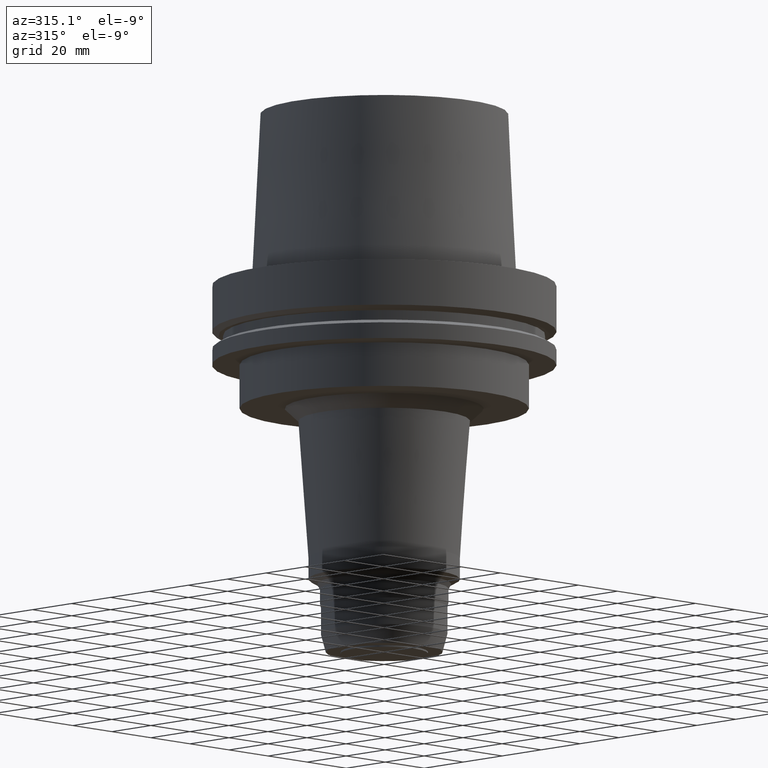
[diagram: clean part render]
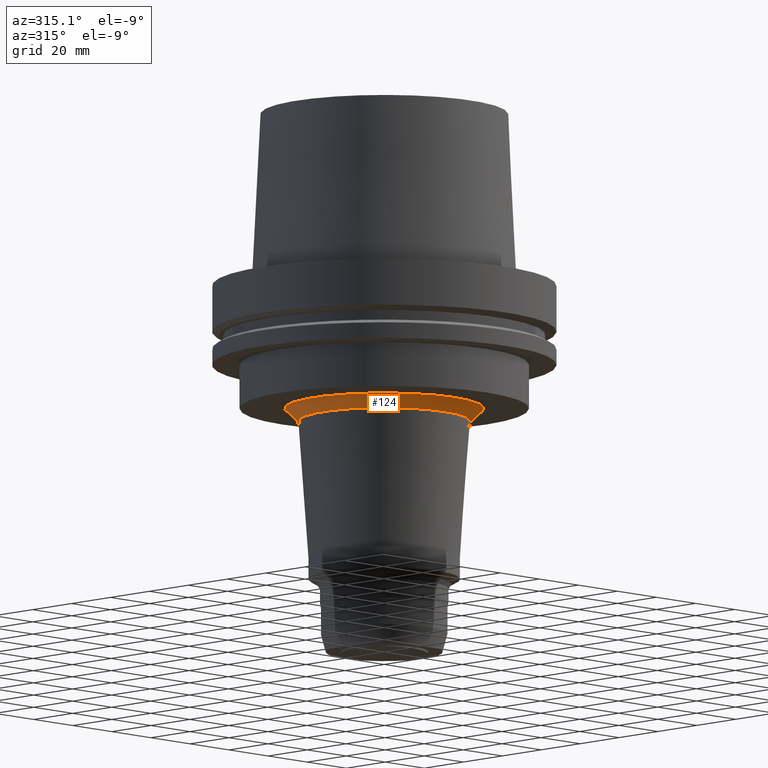
[diagram: same view with one face highlighted and labeled with its STEP entity id]
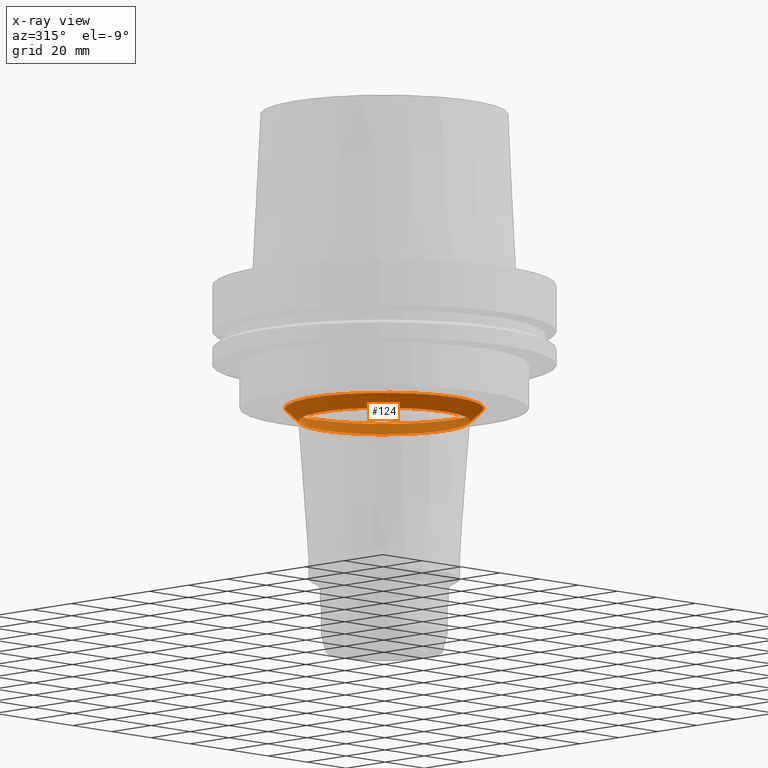
[diagram: x-ray of the same camera — body ghosted, the highlighted face saturated]
A machine part, auxiliary view. The second image highlights one B-rep face of the part: STEP entity #124.
The next image is the same camera in x-ray: the body ghosted, the highlighted face saturated — about 34% of this face is hidden behind the body in this view.
In plain terms, the highlighted conical surface has half-angle 47.08 deg.
Its self-contained STEP definition (entity closure, byte-faithful):
#124=ADVANCED_FACE('Unnamed[1]',(#294,#295),#296,.T.);
#142=EDGE_CURVE('Unnamed[1]',#323,#323,#324,.T.);
#181=EDGE_CURVE('Unnamed[1]',#385,#385,#386,.T.);
#294=FACE_BOUND('',#517,.T.);
#295=FACE_BOUND('',#518,.T.);
#296=CONICAL_SURFACE('',#519,33.6561547954077,0.821697890262664);
#323=VERTEX_POINT('',#554);
#324=CIRCLE('',#555,36.1495693378047);
#385=VERTEX_POINT('',#632);
#386=CIRCLE('',#633,31.1627402530107);
#517=EDGE_LOOP('',(#753));
#518=EDGE_LOOP('',(#754));
#519=AXIS2_PLACEMENT_3D('',#755,#756,#757);
#554=CARTESIAN_POINT('',(2.75545529808155E-015,36.1495693378047,-45.0));
#555=AXIS2_PLACEMENT_3D('',#785,#786,#787);
#632=CARTESIAN_POINT('',(3.03940934595354E-015,31.1627402530107,-49.6373215211062));
#633=AXIS2_PLACEMENT_3D('',#854,#855,#856);
#753=ORIENTED_EDGE('',*,*,#181,.F.);
#754=ORIENTED_EDGE('',*,*,#142,.T.);
#755=CARTESIAN_POINT('',(2.89743232201754E-015,5.79486464403508E-015,-47.3186607605531));
#756=DIRECTION('',(-6.12323399573677E-017,-1.22464679914735E-016,1.0));
#757=DIRECTION('',(-1.23259516440783E-032,1.0,1.22464679914735E-016));
#785=CARTESIAN_POINT('',(2.75545529808155E-015,5.51091059616309E-015,-45.0));
#786=DIRECTION('',(6.12323399573677E-017,1.22464679914735E-016,-1.0));
#787=DIRECTION('',(-1.23259516440783E-032,1.0,1.22464679914735E-016));
#854=CARTESIAN_POINT('',(3.03940934595354E-015,6.07881869190708E-015,-49.6373215211062));
#855=DIRECTION('',(6.12323399573676E-017,1.22464679914735E-016,-1.0));
#856=DIRECTION('',(-1.23259516440783E-032,1.0,1.22464679914735E-016));